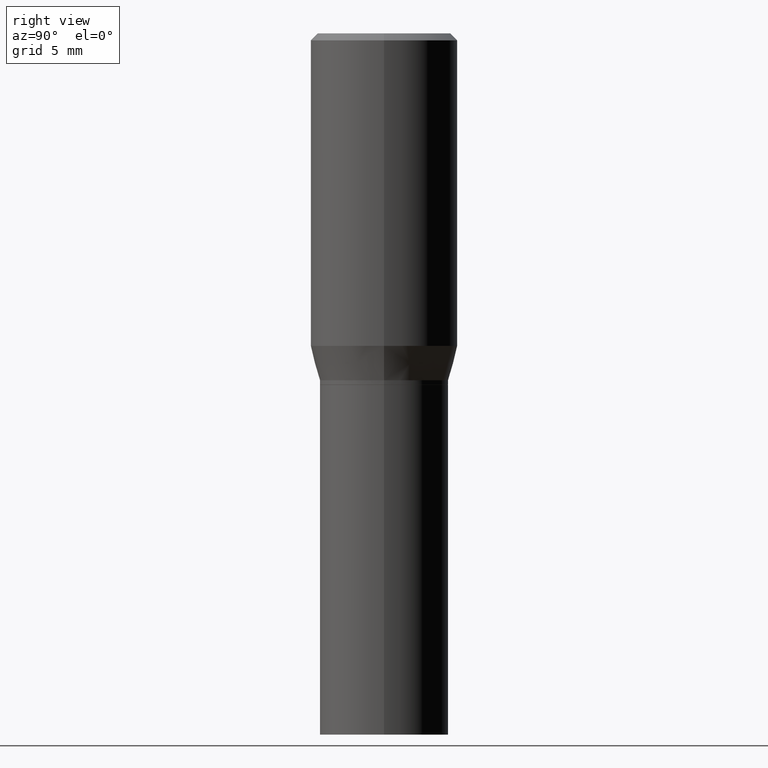
[diagram: clean part render]
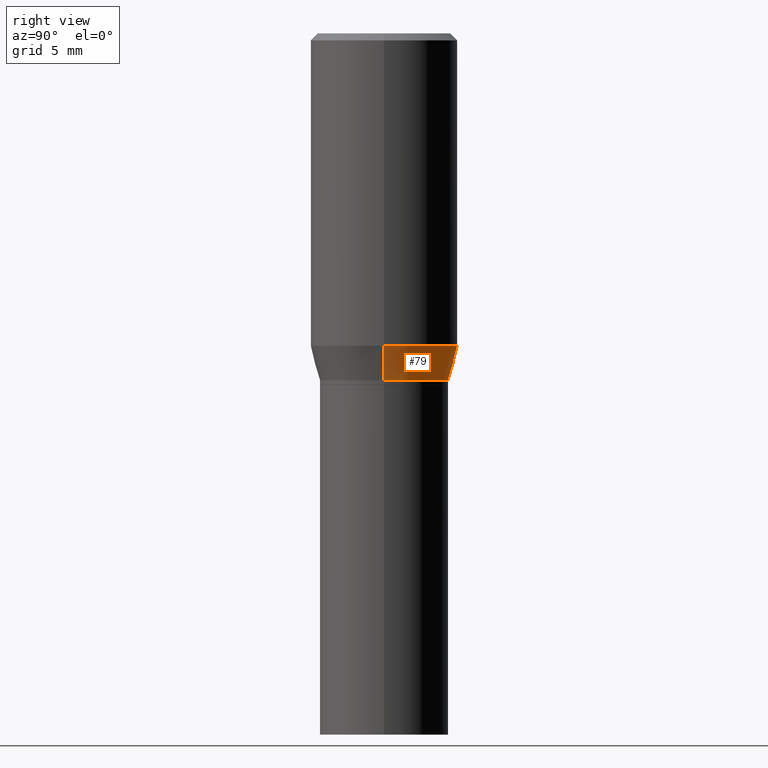
[diagram: same view with one face highlighted and labeled with its STEP entity id]
A machine part, right view. The second image highlights one B-rep face of the part: STEP entity #79.
In plain terms, the highlighted conical surface has half-angle 15 deg.
Its self-contained STEP definition (entity closure, byte-faithful):
#5 = CIRCLE ( 'NONE', #394, 0.1575000000000000289 ) ;
#7 = CARTESIAN_POINT ( 'NONE',  ( -0.1575000000000000289, -1.214875745319705316E-15, -0.6684785990908935771 ) ) ;
#43 = EDGE_LOOP ( 'NONE', ( #320, #76, #365, #443 ) ) ;
#69 = CARTESIAN_POINT ( 'NONE',  ( 1.814537854189371548E-29, -2.590679153421614242E-15, -0.7420000000000002149 ) ) ;
#76 = ORIENTED_EDGE ( 'NONE', *, *, #322, .T. ) ;
#79 = ADVANCED_FACE ( 'NONE', ( #295 ), #199, .T. ) ;
#88 = DIRECTION ( 'NONE',  ( -2.445468806185136597E-29, 3.491481338843145583E-15, 1.000000000000000000 ) ) ;
#110 = CARTESIAN_POINT ( 'NONE',  ( 0.1377999999999999781, -3.552931410406782114E-15, -0.7420000000000002149 ) ) ;
#120 = DIRECTION ( 'NONE',  ( 1.000000000000000000, -6.982962677686267499E-15, 0.000000000000000000 ) ) ;
#128 = VECTOR ( 'NONE', #357, 39.37007874015748143 ) ;
#163 = CARTESIAN_POINT ( 'NONE',  ( 0.1575000000000000289, -3.433797175877450400E-15, -0.6684785990908935771 ) ) ;
#199 = CONICAL_SURFACE ( 'NONE', #361, 0.1377999999999999781, 0.2617993877991510177 ) ;
#202 = CARTESIAN_POINT ( 'NONE',  ( 0.1377999999999999781, -3.552931410406782114E-15, -0.7420000000000002149 ) ) ;
#205 = DIRECTION ( 'NONE',  ( 1.000000000000000000, -6.982962677686267499E-15, 0.000000000000000000 ) ) ;
#208 = EDGE_CURVE ( 'NONE', #382, #250, #323, .T. ) ;
#214 = VERTEX_POINT ( 'NONE', #224 ) ;
#224 = CARTESIAN_POINT ( 'NONE',  ( -0.1377999999999999781, -1.413213504431950829E-15, -0.7420000000000002149 ) ) ;
#238 = CARTESIAN_POINT ( 'NONE',  ( 1.634743561679119835E-29, -2.333980554141863708E-15, -0.6684785990908935771 ) ) ;
#239 = DIRECTION ( 'NONE',  ( -2.445468806185136597E-29, 3.491481338843145583E-15, 1.000000000000000000 ) ) ;
#248 = VERTEX_POINT ( 'NONE', #7 ) ;
#250 = VERTEX_POINT ( 'NONE', #163 ) ;
#255 = DIRECTION ( 'NONE',  ( -2.445468806185136597E-29, 3.491481338843145583E-15, 1.000000000000000000 ) ) ;
#275 = CARTESIAN_POINT ( 'NONE',  ( 1.814537854189371548E-29, -2.590679153421614242E-15, -0.7420000000000002149 ) ) ;
#291 = LINE ( 'NONE', #390, #345 ) ;
#295 = FACE_OUTER_BOUND ( 'NONE', #43, .T. ) ;
#315 = AXIS2_PLACEMENT_3D ( 'NONE', #275, #239, #205 ) ;
#320 = ORIENTED_EDGE ( 'NONE', *, *, #406, .T. ) ;
#322 = EDGE_CURVE ( 'NONE', #214, #248, #291, .T. ) ;
#323 = LINE ( 'NONE', #110, #128 ) ;
#345 = VECTOR ( 'NONE', #460, 39.37007874015748143 ) ;
#357 = DIRECTION ( 'NONE',  ( 0.2588190451025222938, 1.565188264969614671E-15, 0.9659258262890678681 ) ) ;
#361 = AXIS2_PLACEMENT_3D ( 'NONE', #69, #255, #120 ) ;
#365 = ORIENTED_EDGE ( 'NONE', *, *, #377, .F. ) ;
#377 = EDGE_CURVE ( 'NONE', #250, #248, #5, .T. ) ;
#382 = VERTEX_POINT ( 'NONE', #202 ) ;
#390 = CARTESIAN_POINT ( 'NONE',  ( -0.1377999999999999781, -1.611551263544196737E-15, -0.7420000000000002149 ) ) ;
#394 = AXIS2_PLACEMENT_3D ( 'NONE', #238, #88, #449 ) ;
#406 = EDGE_CURVE ( 'NONE', #382, #214, #448, .T. ) ;
#443 = ORIENTED_EDGE ( 'NONE', *, *, #208, .F. ) ;
#448 = CIRCLE ( 'NONE', #315, 0.1377999999999999781 ) ;
#449 = DIRECTION ( 'NONE',  ( 1.000000000000000000, -6.982962677686267499E-15, 0.000000000000000000 ) ) ;
#460 = DIRECTION ( 'NONE',  ( -0.2588190451025222938, 5.211531920934555775E-15, 0.9659258262890678681 ) ) ;